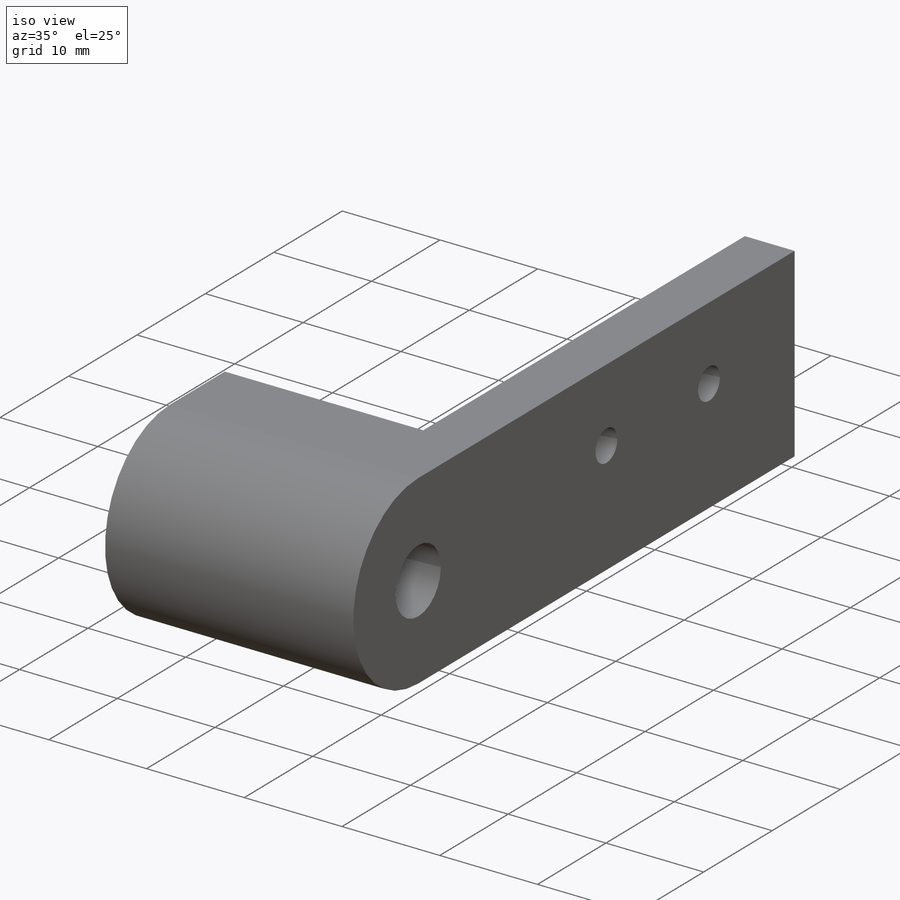
[diagram: iso view]
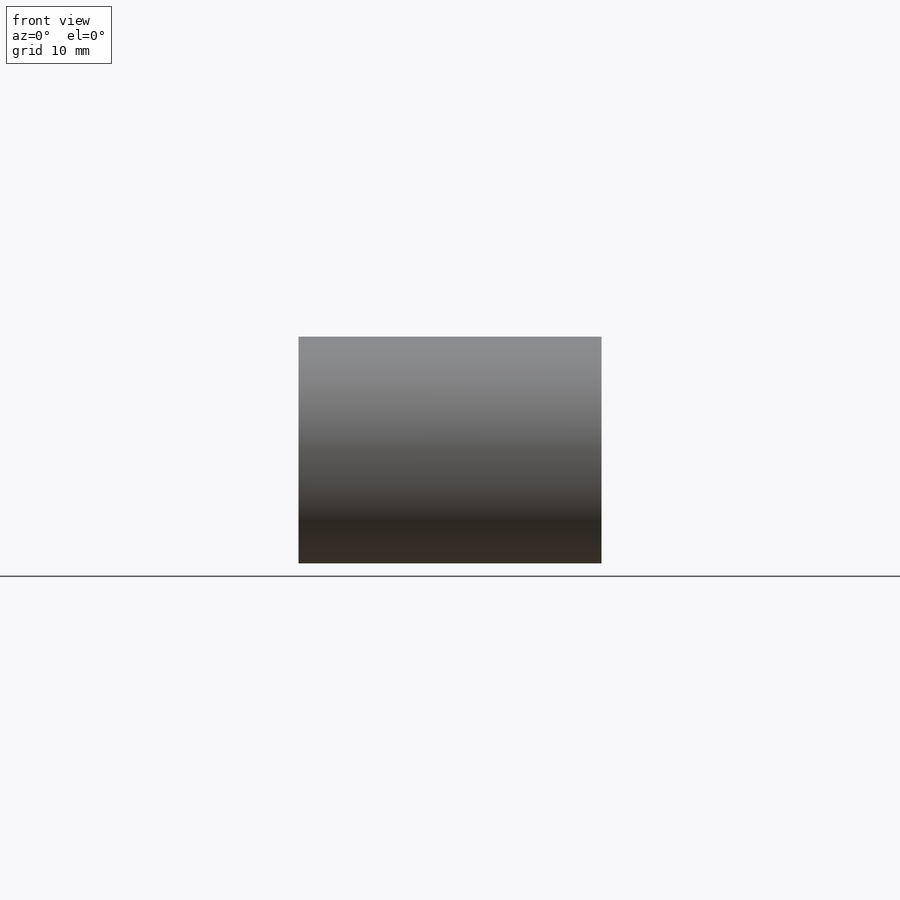
[diagram: front view]
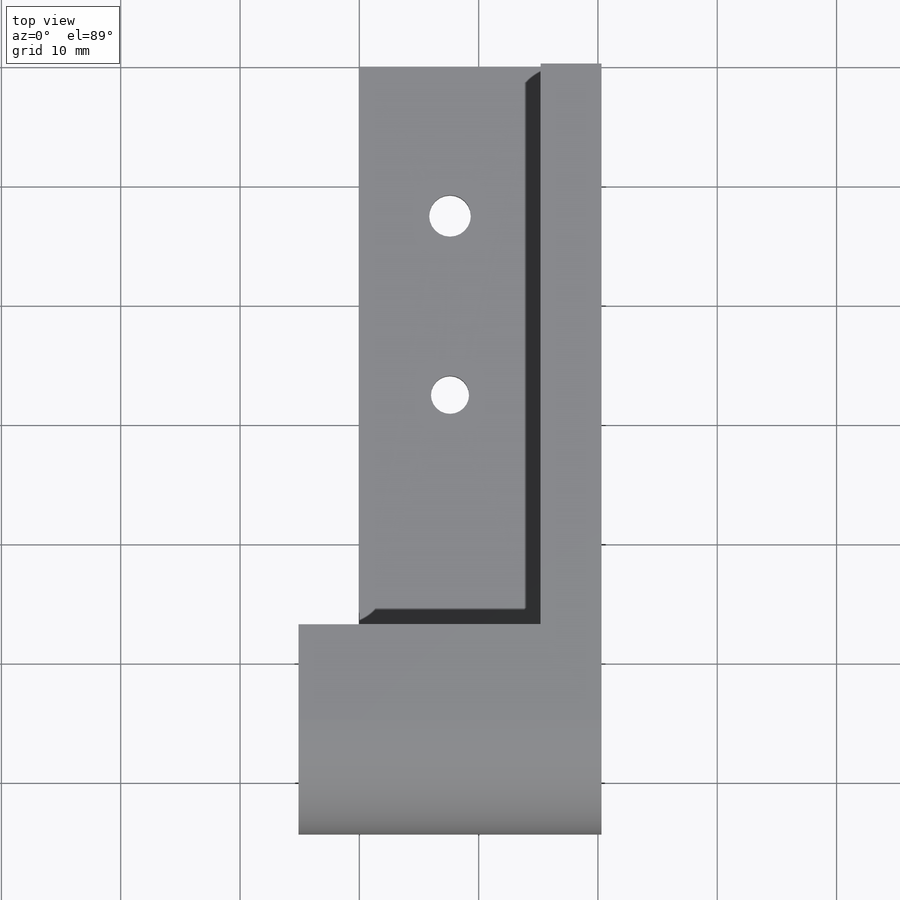
[diagram: top view]
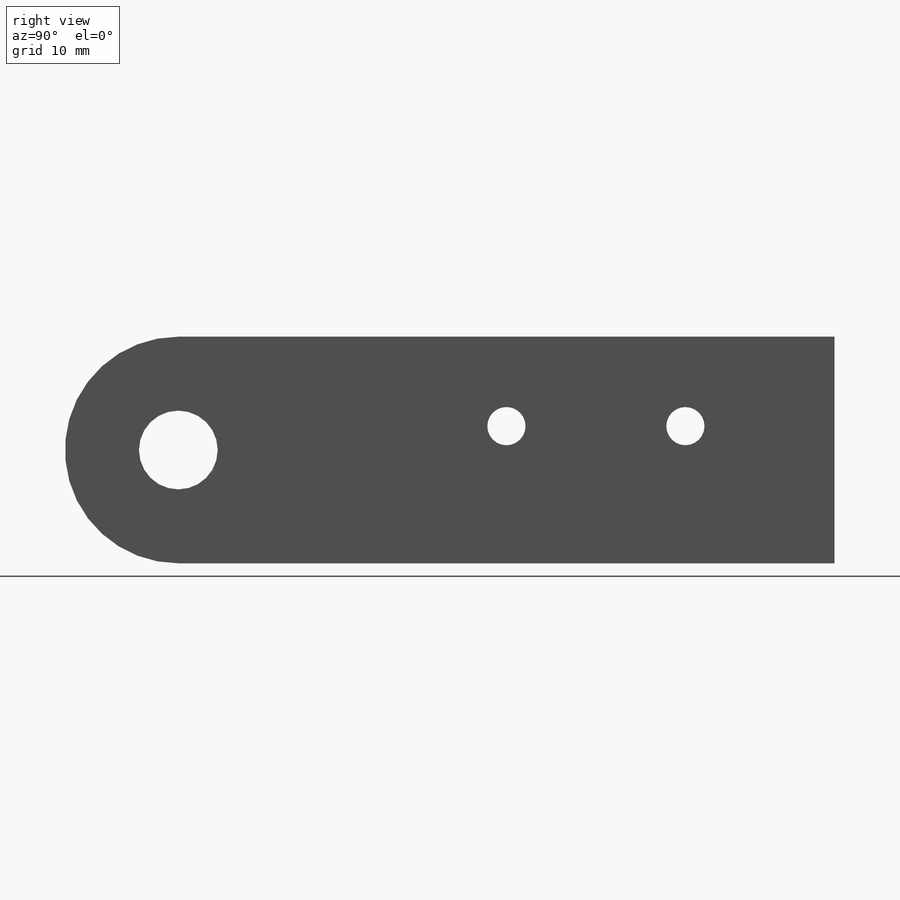
[diagram: right view]
SOLIDWORKS PART (.sldprt)
format: sldprt  version: not decoded by parser v0  size: 233,984 bytes
history: native  units: mm
features: sketch x7, cut_extrude x4, extrude x3, material x1 (+13 scaffold rows collapsed)
feature tree (28):
  scaffold x13  (default folders/planes/origin — collapsed)
  material  "Material <not specified>"
  sketch  "Sketch1"  dims[D1=15.2mm D2=5.1mm D3=5.1mm D4=15.0mm D5=4.0mm]
  extrude  "Boss-Extrude1"  Depth=50mm
  sketch  "Sketch2"
  extrude  "Boss-Extrude2"  Depth=25.4mm
  sketch  "Sketch3"  dims[c1.D3=6.6mm c1.D4=9.5mm c1.D1=9.5mm c1.D2=55.0mm c2.D4=55.0mm]
  cut_extrude  "Cut-Extrude1"  Depth=25.4mm
  sketch  "Sketch4"  dims[D3=3.2mm D4=~3.205428mm D1=7.5mm D2=7.5mm D5=12.5mm D6=15.0mm]
  cut_extrude  "Cut-Extrude2"  Depth=25.4mm
  sketch  "Sketch5"  dims[D1=3.2mm D2=~3.493717mm D3=12.7mm D4=12.7mm D5=12.5mm D6=15.0mm]
  cut_extrude  "Cut-Extrude3"  [1 undecoded]
  sketch  "Sketch6"  dims[D1=47.0mm]
  cut_extrude  "Cut-Extrude4"  [1 undecoded]
  sketch  "Sketch7"  dims[D1=3.0mm]
  extrude  "Boss-Extrude3"  [1 undecoded]
decode coverage: 10 of 14 modeling features carry decoded parameters
note: ~ marks probable driven/reference dimensions
note: 3 parameter values undecoded
summary: no parameter record found for 3 features
note: suppression state not decoded; provenance and decode notes live in map.json
